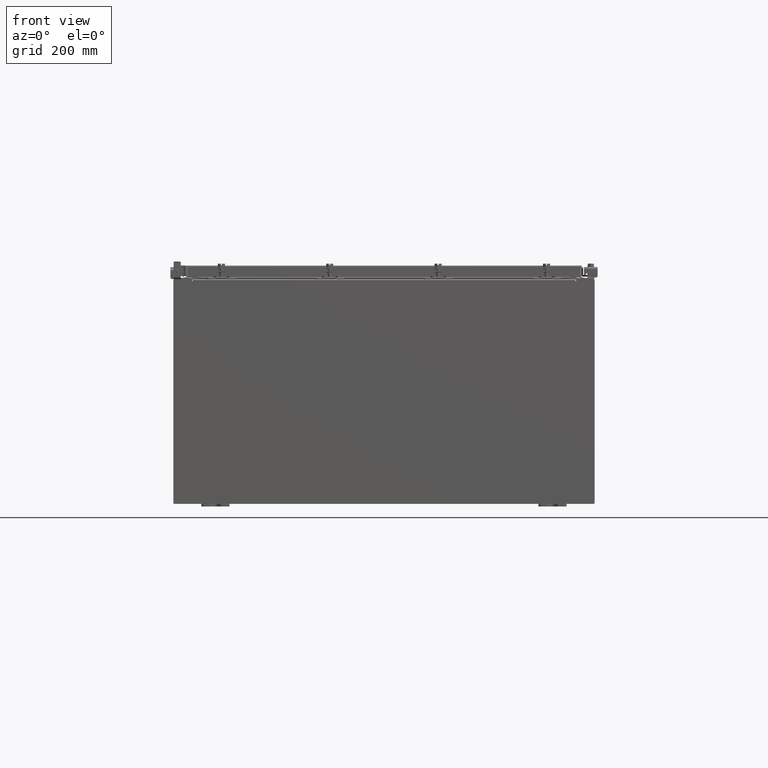
[diagram: clean part render]
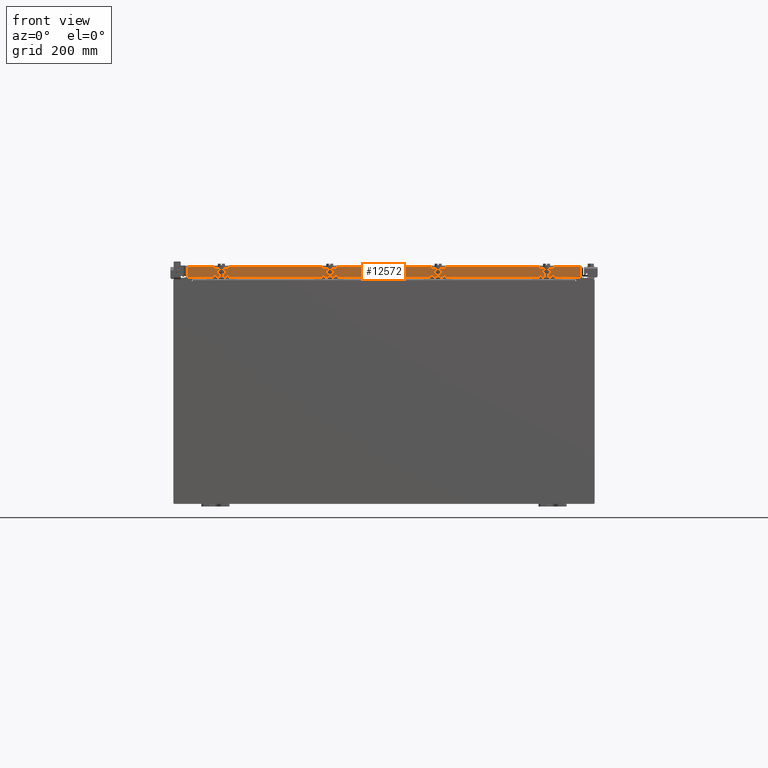
[diagram: same view with one face highlighted and labeled with its STEP entity id]
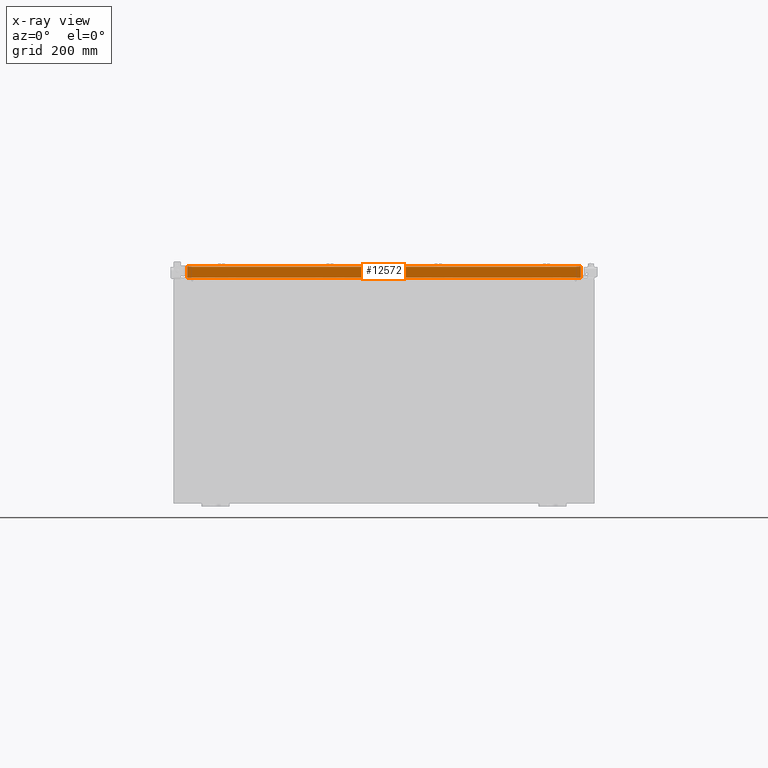
[diagram: x-ray of the same camera — body ghosted, the highlighted face saturated]
A machine part, front view. The second image highlights one B-rep face of the part: STEP entity #12572.
The next image is the same camera in x-ray: the body ghosted, the highlighted face saturated — about 0% of this face is hidden behind the body in this view.
In plain terms, the highlighted planar face has unit normal (-0, 1, -0).
Its self-contained STEP definition (entity closure, byte-faithful):
#1094 = DIRECTION ( 'NONE',  ( -1.000000000000000000, 4.379057701015054300E-047, 1.212817869044015600E-016 ) ) ;
#1112 = CARTESIAN_POINT ( 'NONE',  ( 14.07799999999999900, -17.09400000000000500, -0.8499999999999996400 ) ) ;
#1774 = DIRECTION ( 'NONE',  ( 1.000000000000000000, 3.418789178101959700E-031, -9.318824769679573900E-046 ) ) ;
#2239 = LINE ( 'NONE', #14999, #12334 ) ;
#3656 = DIRECTION ( 'NONE',  ( 0.0000000000000000000, -2.818880942772360100E-015, -1.000000000000000000 ) ) ;
#3673 = LINE ( 'NONE', #24442, #13169 ) ;
#5192 = PLANE ( 'NONE',  #10641 ) ;
#5303 = ORIENTED_EDGE ( 'NONE', *, *, #11898, .F. ) ;
#6144 = ORIENTED_EDGE ( 'NONE', *, *, #18886, .F. ) ;
#7086 = DIRECTION ( 'NONE',  ( 0.0000000000000000000, 2.818880942772360100E-015, 1.000000000000000000 ) ) ;
#7180 = FACE_OUTER_BOUND ( 'NONE', #14494, .T. ) ;
#7426 = EDGE_CURVE ( 'NONE', #8140, #18393, #11553, .T. ) ;
#8140 = VERTEX_POINT ( 'NONE', #17552 ) ;
#8696 = LINE ( 'NONE', #14359, #23168 ) ;
#9016 = VECTOR ( 'NONE', #16471, 39.37007874015748100 ) ;
#9128 = CARTESIAN_POINT ( 'NONE',  ( 13.23915786437626900, -17.09399999999999800, -0.8500000000000006400 ) ) ;
#9426 = ORIENTED_EDGE ( 'NONE', *, *, #20757, .F. ) ;
#9688 = LINE ( 'NONE', #1112, #19725 ) ;
#10032 = CARTESIAN_POINT ( 'NONE',  ( -13.98915786437626900, -17.09400000000000100, -0.08770000000000007000 ) ) ;
#10476 = VERTEX_POINT ( 'NONE', #23389 ) ;
#10641 = AXIS2_PLACEMENT_3D ( 'NONE', #10838, #18426, #7086 ) ;
#10834 = CARTESIAN_POINT ( 'NONE',  ( 13.98915786437626700, -17.09400000000000500, -0.8499999999999996400 ) ) ;
#10838 = CARTESIAN_POINT ( 'NONE',  ( 5.844078221047488800E-030, -17.09400000000000100, 4.844676449176230700E-014 ) ) ;
#11553 = LINE ( 'NONE', #20999, #20996 ) ;
#11898 = EDGE_CURVE ( 'NONE', #16708, #10476, #17863, .T. ) ;
#12334 = VECTOR ( 'NONE', #3656, 39.37007874015748100 ) ;
#12485 = DIRECTION ( 'NONE',  ( -1.000000000000000000, 4.379057701015054300E-047, 1.212817869044015600E-016 ) ) ;
#12572 = ADVANCED_FACE ( 'NONE', ( #7180 ), #5192, .F. ) ;
#13169 = VECTOR ( 'NONE', #1774, 39.37007874015748100 ) ;
#13177 = VERTEX_POINT ( 'NONE', #10032 ) ;
#13230 = CARTESIAN_POINT ( 'NONE',  ( -13.98915786437626900, -17.09400000000000500, -0.8499999999999963100 ) ) ;
#14359 = CARTESIAN_POINT ( 'NONE',  ( 14.07799999999999900, -17.09400000000000500, -0.8499999999999996400 ) ) ;
#14494 = EDGE_LOOP ( 'NONE', ( #14717, #18085, #6144, #5303, #9426, #20015 ) ) ;
#14717 = ORIENTED_EDGE ( 'NONE', *, *, #20258, .F. ) ;
#14999 = CARTESIAN_POINT ( 'NONE',  ( -13.98915786437626900, -17.09400000000000100, 4.844676449176230700E-014 ) ) ;
#16471 = DIRECTION ( 'NONE',  ( -1.000000000000000000, 0.0000000000000000000, 0.0000000000000000000 ) ) ;
#16708 = VERTEX_POINT ( 'NONE', #19496 ) ;
#17552 = CARTESIAN_POINT ( 'NONE',  ( 13.98915786437626500, -17.09400000000000100, -0.08770000000000007000 ) ) ;
#17863 = LINE ( 'NONE', #9128, #9016 ) ;
#18085 = ORIENTED_EDGE ( 'NONE', *, *, #18990, .T. ) ;
#18393 = VERTEX_POINT ( 'NONE', #10834 ) ;
#18426 = DIRECTION ( 'NONE',  ( -3.418789178101958800E-031, 1.000000000000000000, -2.818880942772360100E-015 ) ) ;
#18582 = VERTEX_POINT ( 'NONE', #13230 ) ;
#18886 = EDGE_CURVE ( 'NONE', #10476, #18582, #9688, .T. ) ;
#18990 = EDGE_CURVE ( 'NONE', #13177, #18582, #2239, .T. ) ;
#19496 = CARTESIAN_POINT ( 'NONE',  ( 13.23915786437626900, -17.09399999999999800, -0.8500000000000006400 ) ) ;
#19725 = VECTOR ( 'NONE', #12485, 39.37007874015748100 ) ;
#20015 = ORIENTED_EDGE ( 'NONE', *, *, #7426, .F. ) ;
#20258 = EDGE_CURVE ( 'NONE', #13177, #8140, #3673, .T. ) ;
#20757 = EDGE_CURVE ( 'NONE', #18393, #16708, #8696, .T. ) ;
#20996 = VECTOR ( 'NONE', #22892, 39.37007874015748100 ) ;
#20999 = CARTESIAN_POINT ( 'NONE',  ( 13.98915786437626700, -17.09400000000000100, -0.07469999999999978000 ) ) ;
#22892 = DIRECTION ( 'NONE',  ( -0.0000000000000000000, -2.818880942772360100E-015, -1.000000000000000000 ) ) ;
#23168 = VECTOR ( 'NONE', #1094, 39.37007874015748100 ) ;
#23389 = CARTESIAN_POINT ( 'NONE',  ( -13.23915786437626900, -17.09399999999999800, -0.8500000000000006400 ) ) ;
#24442 = CARTESIAN_POINT ( 'NONE',  ( 14.07799999999999800, -17.09400000000000100, -0.08770000000000007000 ) ) ;